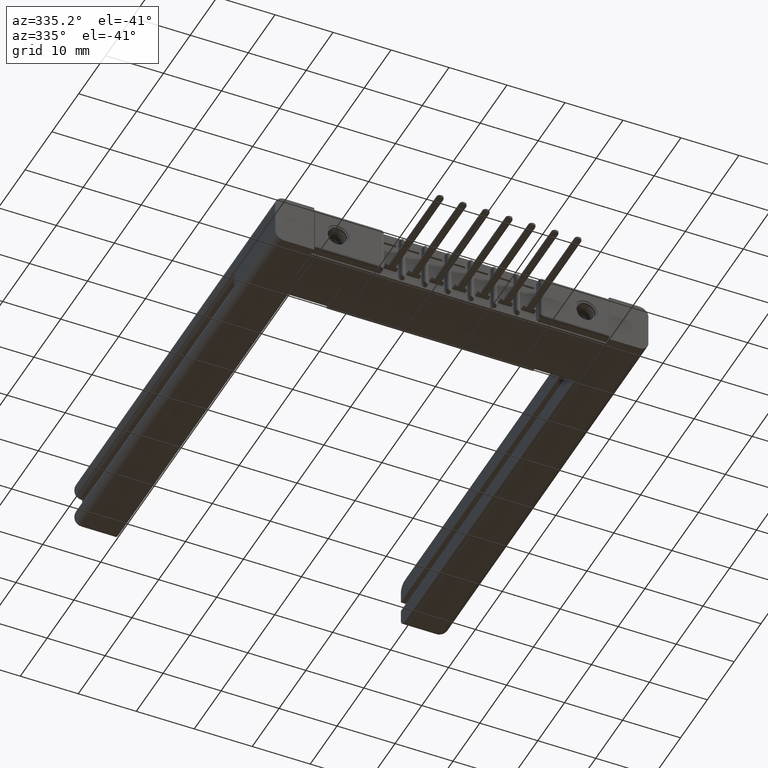
[diagram: clean part render]
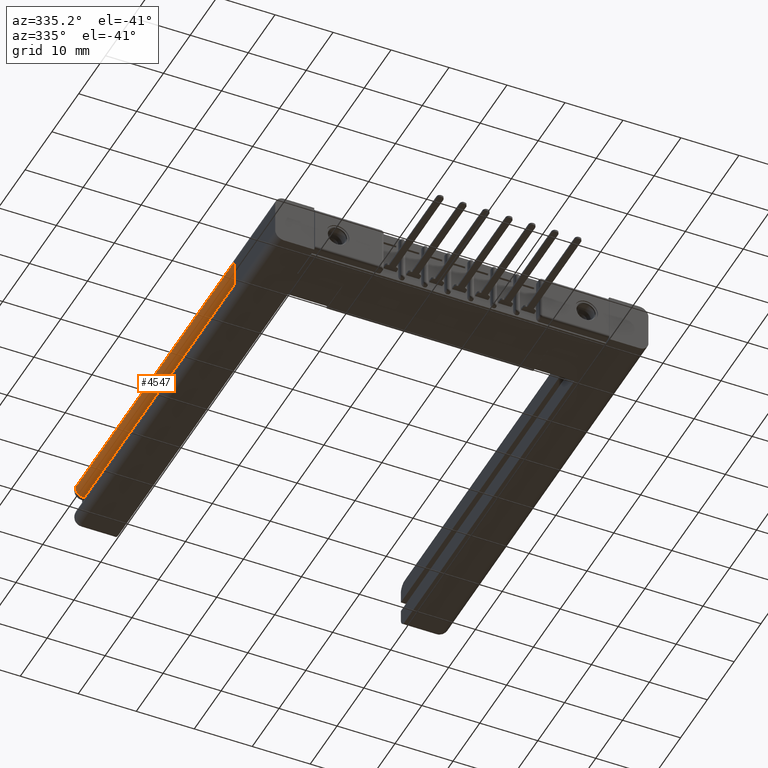
[diagram: same view with one face highlighted and labeled with its STEP entity id]
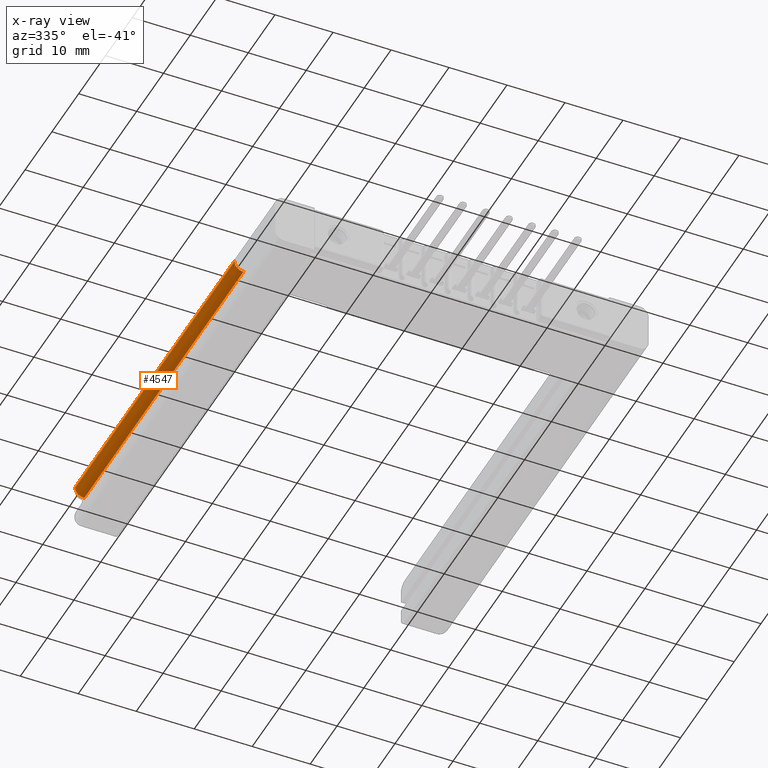
[diagram: x-ray of the same camera — body ghosted, the highlighted face saturated]
A machine part, auxiliary view. The second image highlights one B-rep face of the part: STEP entity #4547.
The next image is the same camera in x-ray: the body ghosted, the highlighted face saturated — about 0% of this face is hidden behind the body in this view.
In plain terms, the highlighted cylindrical surface (edge-blend (fillet) strip) has radius 1.5621 mm, axis along (-0, -1, 0).
Its self-contained STEP definition (entity closure, byte-faithful):
#32 = CARTESIAN_POINT ( 'NONE',  ( 0.0000000000000000000, 0.5999999999999998668, -0.06150000000000042238 ) ) ;
#96 = DIRECTION ( 'NONE',  ( -7.120336040201873227E-16, -1.000000000000000000, 2.263142815230032546E-16 ) ) ;
#100 = DIRECTION ( 'NONE',  ( 0.0000000000000000000, 0.0000000000000000000, -1.000000000000000000 ) ) ;
#218 = AXIS2_PLACEMENT_3D ( 'NONE', #7661, #11668, #781 ) ;
#280 = DIRECTION ( 'NONE',  ( 7.120336040201873227E-16, 1.000000000000000000, -2.263142815230032546E-16 ) ) ;
#349 = CARTESIAN_POINT ( 'NONE',  ( 0.06149796744608740373, 0.6000000000000001998, -0.1225000000000015660 ) ) ;
#542 = VERTEX_POINT ( 'NONE', #1525 ) ;
#721 = CARTESIAN_POINT ( 'NONE',  ( 0.06149796744609068583, 2.940000000000007052, -0.1225000000000015937 ) ) ;
#781 = DIRECTION ( 'NONE',  ( 0.0000000000000000000, 0.0000000000000000000, 1.000000000000000000 ) ) ;
#794 = EDGE_CURVE ( 'NONE', #10471, #542, #11654, .T. ) ;
#1053 = EDGE_CURVE ( 'NONE', #11126, #10471, #12851, .T. ) ;
#1062 = AXIS2_PLACEMENT_3D ( 'NONE', #11102, #96, #8986 ) ;
#1189 = DIRECTION ( 'NONE',  ( -7.120336040201874213E-16, -1.000000000000000000, 2.334284690065039986E-16 ) ) ;
#1525 = CARTESIAN_POINT ( 'NONE',  ( 0.06149796744608740373, 0.6000000000000001998, -0.1225000000000014966 ) ) ;
#1590 = EDGE_CURVE ( 'NONE', #11126, #12641, #1653, .T. ) ;
#1653 = CIRCLE ( 'NONE', #218, 0.06150000000000035300 ) ;
#2301 = LINE ( 'NONE', #349, #3772 ) ;
#3137 = CARTESIAN_POINT ( 'NONE',  ( 0.06149796744608740373, 0.6000000000000001998, -0.06100000000000069256 ) ) ;
#3699 = CARTESIAN_POINT ( 'NONE',  ( 2.032419574938677545E-06, 2.940000000000007052, -0.06149998347626495221 ) ) ;
#3772 = VECTOR ( 'NONE', #280, 39.37007874015748143 ) ;
#4547 = ADVANCED_FACE ( 'NONE', ( #6120 ), #8005, .T. ) ;
#4735 = EDGE_CURVE ( 'NONE', #542, #12641, #2301, .T. ) ;
#5781 = ORIENTED_EDGE ( 'NONE', *, *, #794, .F. ) ;
#6120 = FACE_OUTER_BOUND ( 'NONE', #10603, .T. ) ;
#7661 = CARTESIAN_POINT ( 'NONE',  ( 0.06150000000000370448, 2.940000000000007052, -0.06100000000000110195 ) ) ;
#8005 = CYLINDRICAL_SURFACE ( 'NONE', #1062, 0.06150000000000035300 ) ;
#8589 = VECTOR ( 'NONE', #9900, 39.37007874015748143 ) ;
#8917 = CARTESIAN_POINT ( 'NONE',  ( 3.551402391763542381E-15, 3.000000000000006661, -0.06150000000000131056 ) ) ;
#8919 = AXIS2_PLACEMENT_3D ( 'NONE', #3137, #1189, #100 ) ;
#8986 = DIRECTION ( 'NONE',  ( 0.0000000000000000000, 0.0000000000000000000, -1.000000000000000000 ) ) ;
#9900 = DIRECTION ( 'NONE',  ( -7.120336040201873227E-16, -1.000000000000000000, 2.334284690065039986E-16 ) ) ;
#10471 = VERTEX_POINT ( 'NONE', #32 ) ;
#10603 = EDGE_LOOP ( 'NONE', ( #12757, #11011, #12493, #5781 ) ) ;
#11011 = ORIENTED_EDGE ( 'NONE', *, *, #1590, .T. ) ;
#11102 = CARTESIAN_POINT ( 'NONE',  ( 0.06150000000000015177, 0.6000000000000001998, -0.06100000000000069256 ) ) ;
#11126 = VERTEX_POINT ( 'NONE', #3699 ) ;
#11654 = CIRCLE ( 'NONE', #8919, 0.06150000000000035300 ) ;
#11668 = DIRECTION ( 'NONE',  ( -7.120336040201873227E-16, -1.000000000000000000, 2.334284690065039986E-16 ) ) ;
#12493 = ORIENTED_EDGE ( 'NONE', *, *, #4735, .F. ) ;
#12641 = VERTEX_POINT ( 'NONE', #721 ) ;
#12757 = ORIENTED_EDGE ( 'NONE', *, *, #1053, .F. ) ;
#12851 = LINE ( 'NONE', #8917, #8589 ) ;